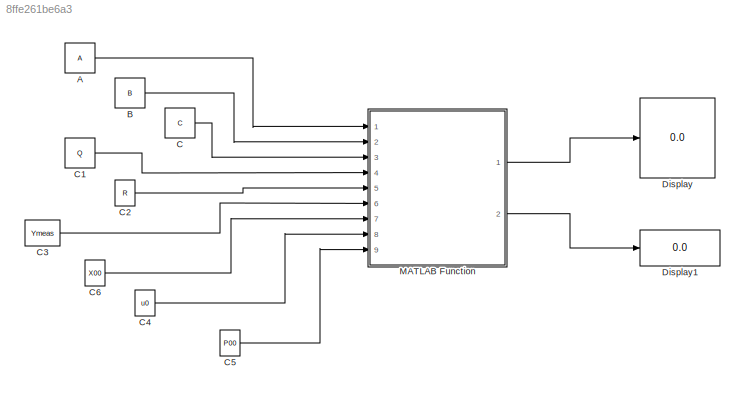
MODEL slx_8ffe261be6a3
KIND model
CONFIG AbsTol = auto
CONFIG FixedStep = auto
CONFIG MaxStep = auto
CONFIG MinStep = auto
CONFIG RelTol = 1e-3
CONFIG SampleTimeConstraint = Unconstrained
CONFIG Solver = VariableStepAuto
CONFIG SolverMode = Auto
CONFIG SolverName = VariableStepAuto
CONFIG StartTime = 0.0
CONFIG StopTime = 10.0
BLOCK [Constant] A
  Value = A
  VectorParams1D = off
BLOCK [Constant] B
  Value = B
  VectorParams1D = off
BLOCK [Constant] C
  Value = C
  VectorParams1D = off
BLOCK [Constant] C1
  Value = Q
  VectorParams1D = off
BLOCK [Constant] C2
  Value = R
  VectorParams1D = off
BLOCK [Constant] C3
  Value = Ymeas
  VectorParams1D = off
BLOCK [Constant] C4
  Value = u0
  VectorParams1D = off
BLOCK [Constant] C5
  Value = P00
  VectorParams1D = off
BLOCK [Constant] C6
  Value = X00
  VectorParams1D = off
BLOCK [Display] Display
  Decimation = 1
  Ports = [1]
BLOCK [Display] Display1
  Decimation = 1
  Ports = [1]
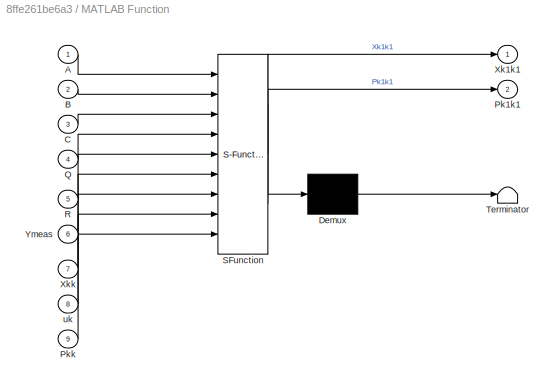
BLOCK [SubSystem] MATLAB Function
  ErrorFcn = Stateflow.Translate.translate
  PermitHierarchicalResolution = ExplicitOnly
  Ports = [9, 2]
  RequestExecContextInheritance = off
  SFBlockType = MATLAB Function
  TreatAsAtomicUnit = on
  Variant = off
BLOCK [Demux] MATLAB Function/ Demux 
  Outputs = 1
  Ports = [1, 1]
BLOCK [S-Function] MATLAB Function/ SFunction 
  EnableBusSupport = on
  FunctionName = sf_sfun
  PortCounts = [9 3]
  Ports = [9, 3]
  SFunctionDeploymentMode = off
  Tag = Stateflow S-Function KalmanFilter 2
BLOCK [Terminator] MATLAB Function/ Terminator 
BLOCK [Inport] MATLAB Function/A
  IconDisplay = Port number
BLOCK [Inport] MATLAB Function/B
  IconDisplay = Port number
  Port = 2
BLOCK [Inport] MATLAB Function/C
  IconDisplay = Port number
  Port = 3
BLOCK [Outport] MATLAB Function/Pk1k1
  IconDisplay = Port number
  Port = 2
BLOCK [Inport] MATLAB Function/Pkk
  IconDisplay = Port number
  Port = 9
BLOCK [Inport] MATLAB Function/Q
  IconDisplay = Port number
  Port = 4
BLOCK [Inport] MATLAB Function/R
  IconDisplay = Port number
  Port = 5
BLOCK [Outport] MATLAB Function/Xk1k1
  IconDisplay = Port number
BLOCK [Inport] MATLAB Function/Xkk
  IconDisplay = Port number
  Port = 7
BLOCK [Inport] MATLAB Function/Ymeas
  IconDisplay = Port number
  Port = 6
BLOCK [Inport] MATLAB Function/uk
  IconDisplay = Port number
  Port = 8
LINE A:1 -> MATLAB Function:1
LINE B:1 -> MATLAB Function:2
LINE C1:1 -> MATLAB Function:4
LINE C2:1 -> MATLAB Function:5
LINE C3:1 -> MATLAB Function:6
LINE C4:1 -> MATLAB Function:8
LINE C5:1 -> MATLAB Function:9
LINE C6:1 -> MATLAB Function:7
LINE C:1 -> MATLAB Function:3
LINE MATLAB Function:1 -> Display:1
LINE MATLAB Function:2 -> Display1:1
CHART MATLAB Function states=1 transitions=1
  STATE_LABEL 'eML_blk_kernel()'
  STATE_LABEL "SCRIPT:\nfunction [Xk1k1,Pk1k1] = KalmanFilter(A,B,C,Q,R,Ymeas,Xkk,uk,Pkk)\n\n\ns     = size(Pkk);\n    % Prediction\n    Xk1k=A*Xkk+B*uk;\n    Pk1k=A*Pkk*A'+Q;\n     % Correction\n    K=Pk1k*C'*inv(C*Pk1k*C'+R);        % Optimal Kalman gain\n    Xk1k1=Xk1k+K*(Ymeas-C*Xk1k);\n    \n    Pk1k1=(eye(s)-K*C)*Pk1k;\n\n\nend"
